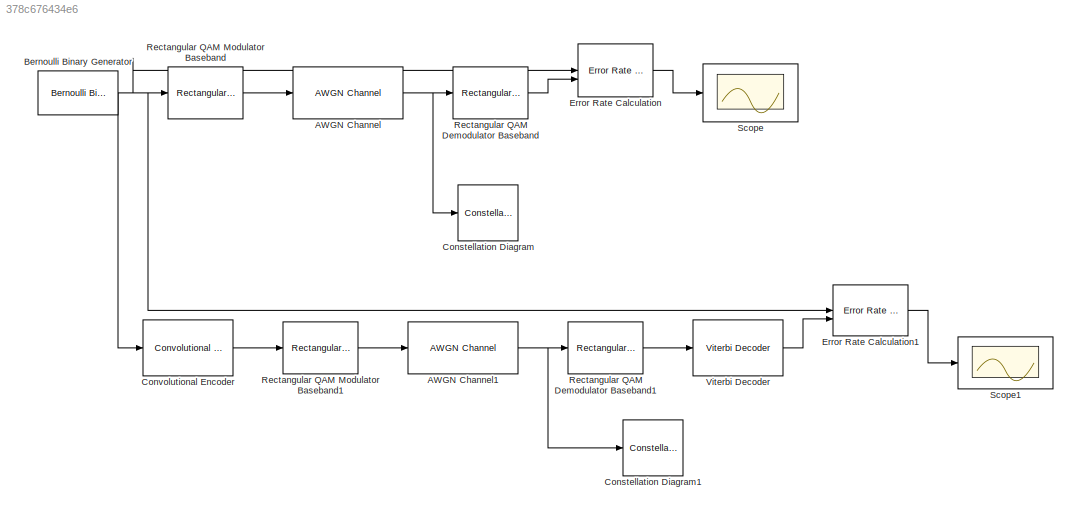
MODEL slx_378c676434e6
KIND model
CONFIG AbsTol = auto
CONFIG EnableMultiTasking = off
CONFIG FixedStep = auto
CONFIG MaxStep = auto
CONFIG MinStep = auto
CONFIG RelTol = 1e-3
CONFIG SampleTimeConstraint = Unconstrained
CONFIG SolverName = VariableStepAuto
CONFIG StartTime = 0.0
CONFIG StopTime = 30
BLOCK [Reference] AWGN Channel  REF=commchan3/AWGN
Channel
  SourceBlock = commchan3/AWGN\nChannel
  SourceType = AWGN Channel
BLOCK [Reference] AWGN Channel1  REF=commchan3/AWGN
Channel
  SourceBlock = commchan3/AWGN\nChannel
  SourceType = AWGN Channel
BLOCK [Reference] Bernoulli Binary Generator  REF=commrandsrc3/Bernoulli Binary
Generator
  SourceBlock = commrandsrc3/Bernoulli Binary\nGenerator
  SourceType = Bernoulli Binary Generator
BLOCK [ConstellationDiagram] Constellation Diagram
  ContainerLayout = {"WindowBounds":[1,1419,1534,709]}
  GraphicalSettings = {"GraphicalSettings":{"Style":{}}}
  Visible = on
  WasSavedAsWebScope = on
BLOCK [ConstellationDiagram] Constellation Diagram1
  ContainerLayout = {"WindowBounds":[1,1419,1534,709]}
  GraphicalSettings = {"GraphicalSettings":{"Style":{}}}
  Visible = on
  WasSavedAsWebScope = on
BLOCK [Reference] Convolutional Encoder  REF=commcnvcod2/Convolutional
Encoder
  SourceBlock = commcnvcod2/Convolutional\nEncoder
  SourceType = Convolutional Encoder
BLOCK [Reference] Error Rate Calculation  REF=commsink2/Error Rate
Calculation
  SourceBlock = commsink2/Error Rate\nCalculation
  SourceType = Error Rate Calculation
BLOCK [Reference] Error Rate Calculation1  REF=commsink2/Error Rate
Calculation
  SourceBlock = commsink2/Error Rate\nCalculation
  SourceType = Error Rate Calculation
BLOCK [Reference] Rectangular QAM Demodulator Baseband  REF=commdigbbndam3/Rectangular QAM
Demodulator
Baseband
  LibrarySourceBlock = commhdldigbbndam/Rectangular QAM\nDemodulator\nBaseband
  SourceBlock = commdigbbndam3/Rectangular QAM\nDemodulator\nBaseband
  SourceType = Rectangular QAM Demodulator Baseband
BLOCK [Reference] Rectangular QAM Demodulator Baseband1  REF=commdigbbndam3/Rectangular QAM
Demodulator
Baseband
  LibrarySourceBlock = commhdldigbbndam/Rectangular QAM\nDemodulator\nBaseband
  SourceBlock = commdigbbndam3/Rectangular QAM\nDemodulator\nBaseband
  SourceType = Rectangular QAM Demodulator Baseband
BLOCK [Reference] Rectangular QAM Modulator Baseband  REF=commdigbbndam3/Rectangular QAM
Modulator
Baseband
  LibrarySourceBlock = commhdldigbbndam/Rectangular QAM\nModulator\nBaseband
  SourceBlock = commdigbbndam3/Rectangular QAM\nModulator\nBaseband
  SourceType = Rectangular QAM Modulator Baseband
BLOCK [Reference] Rectangular QAM Modulator Baseband1  REF=commdigbbndam3/Rectangular QAM
Modulator
Baseband
  LibrarySourceBlock = commhdldigbbndam/Rectangular QAM\nModulator\nBaseband
  SourceBlock = commdigbbndam3/Rectangular QAM\nModulator\nBaseband
  SourceType = Rectangular QAM Modulator Baseband
BLOCK [Scope] Scope
  ActiveDisplayYMaximum = 5625.3260940249129
  ActiveDisplayYMinimum = 5474.3196728447592
  ContainerLayout = {"WindowBounds":[1,1419,1534,709]}
  Floating = off
  GraphicalSettings = {"AxesScalingProperties":{"AlignXAxis":"Center","AlignYAxis":"Center","AutoScaleXAxisLimits":false,"AxesScaling":"Manual","AxesScalingNumUpdates":10,"ExpandOnly":true,"ScaleAxesLimitsAtStop":false,"XAxisDataRange":100,"YAxisDataRange":80},"DisplayProperties":{"ColorOrder":["auto","auto","auto","auto","auto","auto","auto","auto","auto","auto","auto","auto","auto","auto","auto","auto","auto","auto",...<+2488ch>
  MultipleDisplayCache = [{"MaxYLimMag":15.75,"MaxYLimReal":5625.3260940249129,"MinYLimMag":0,"MinYLimReal":5474.3196728447592,"PlotAsMagnitudePhase":false,"ShowGrid":true,"ShowLegend":false,"Title":"%<SignalLabel>","YLabel":""}]
  NumInputPorts = 1
  Visible = on
  WasSavedAsWebScope = on
  WindowPosition = [1195.000000,1.000000,342.000000,712.000000,]
BLOCK [Scope] Scope1
  ActiveDisplayYMaximum = 5.6496200252409405
  ActiveDisplayYMinimum = -1.5455790116051753
  ContainerLayout = {"WindowBounds":[1,1419,1534,709]}
  DataLoggingVariableName = ScopeData1
  Floating = off
  GraphicalSettings = {"AxesScalingProperties":{"AlignXAxis":"Center","AlignYAxis":"Center","AutoScaleXAxisLimits":false,"AxesScaling":"Manual","AxesScalingNumUpdates":10,"ExpandOnly":true,"ScaleAxesLimitsAtStop":false,"XAxisDataRange":100,"YAxisDataRange":80},"DisplayProperties":{"ColorOrder":["auto","auto","auto","auto","auto","auto","auto","auto","auto","auto","auto","auto","auto","auto","auto","auto","auto","auto",...<+2324ch>
  MultipleDisplayCache = [{"MaxYLimMag":722.25,"MaxYLimReal":5.6496200252409405,"MinYLimMag":0,"MinYLimReal":-1.5455790116051753,"PlotAsMagnitudePhase":false,"ShowGrid":true,"ShowLegend":false,"Title":"%<SignalLabel>","YLabel":""}]
  NumInputPorts = 1
  Visible = on
  WasSavedAsWebScope = on
BLOCK [Reference] Viterbi Decoder  REF=commcnvcod2/Viterbi Decoder
  SourceBlock = commcnvcod2/Viterbi Decoder
  SourceType = Viterbi Decoder
NET AWGN Channel1:1 -> Constellation Diagram1:1, Rectangular QAM Demodulator Baseband1:1
NET AWGN Channel:1 -> Constellation Diagram:1, Rectangular QAM Demodulator Baseband:1
NET Bernoulli Binary Generator:1 -> Convolutional Encoder:1, Error Rate Calculation1:1, Error Rate Calculation:1, Rectangular QAM Modulator Baseband:1
LINE Convolutional Encoder:1 -> Rectangular QAM Modulator Baseband1:1
LINE Error Rate Calculation1:1 -> Scope1:1
LINE Error Rate Calculation:1 -> Scope:1
LINE Rectangular QAM Demodulator Baseband1:1 -> Viterbi Decoder:1
LINE Rectangular QAM Demodulator Baseband:1 -> Error Rate Calculation:2
LINE Rectangular QAM Modulator Baseband1:1 -> AWGN Channel1:1
LINE Rectangular QAM Modulator Baseband:1 -> AWGN Channel:1
LINE Viterbi Decoder:1 -> Error Rate Calculation1:2
note: NET lines group one-source signal fan-out (src -> all destinations, sorted); 1:1 wires keep LINE
